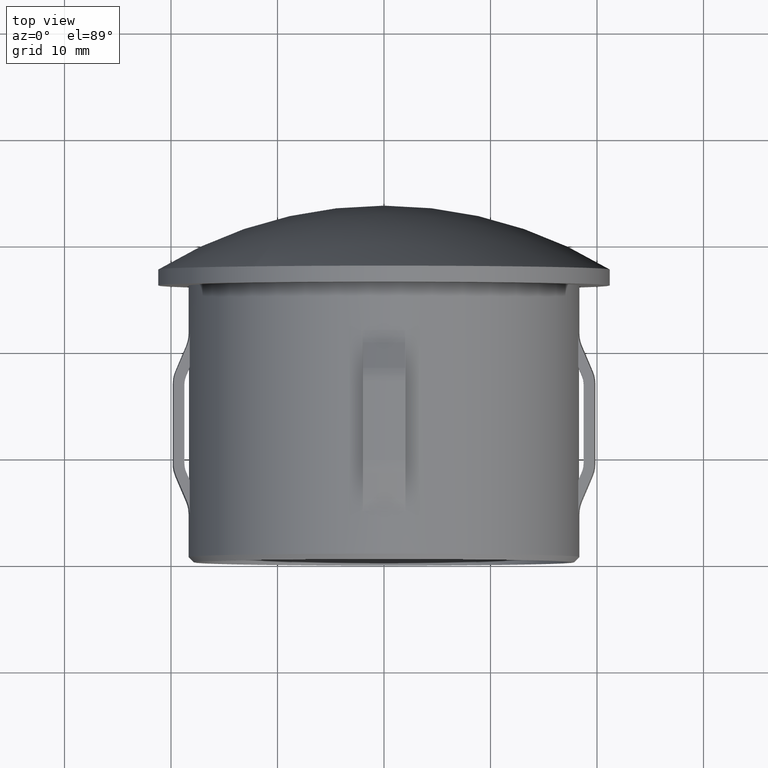
[diagram: clean part render]
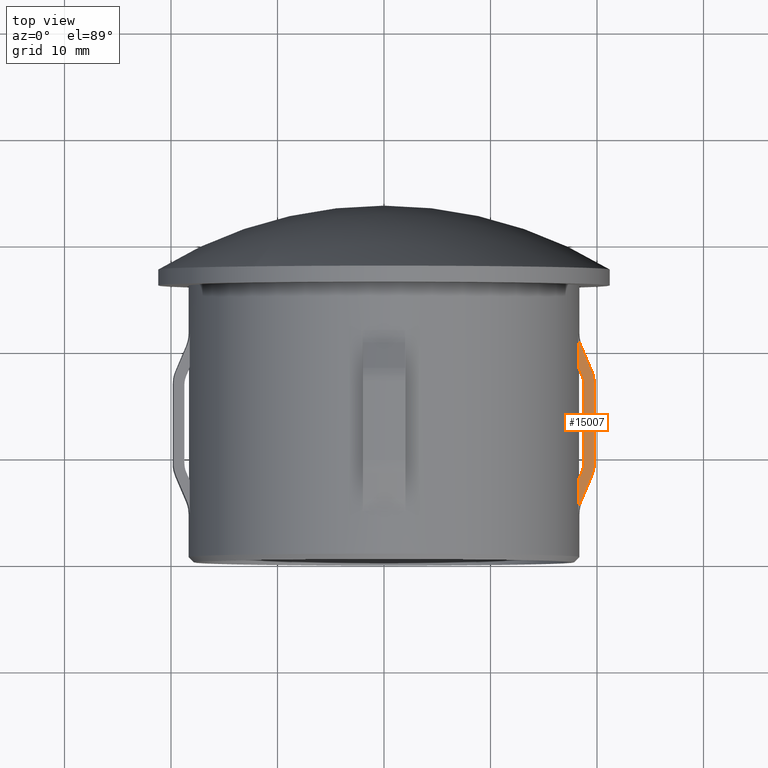
[diagram: same view with one face highlighted and labeled with its STEP entity id]
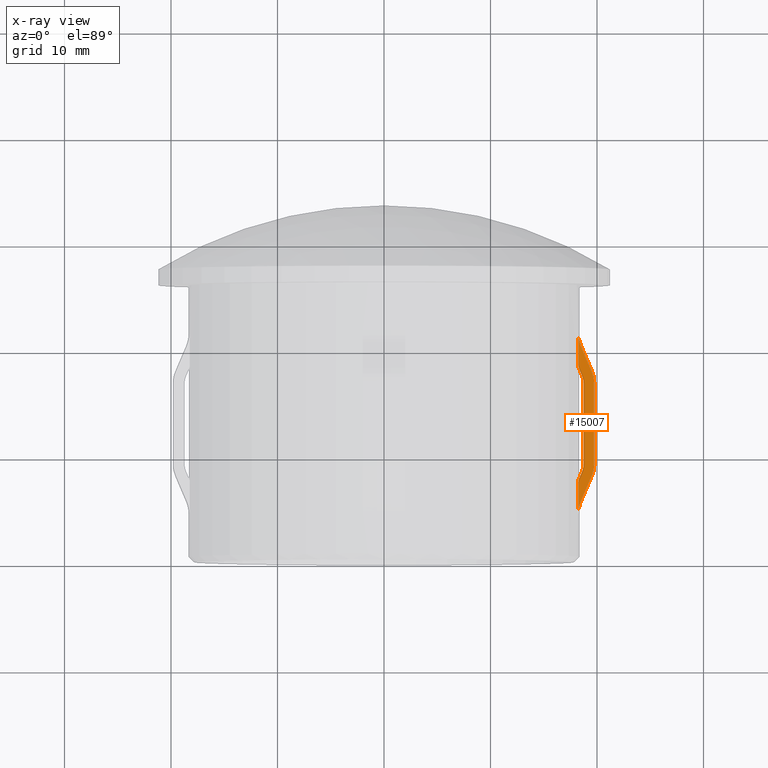
[diagram: x-ray of the same camera — body ghosted, the highlighted face saturated]
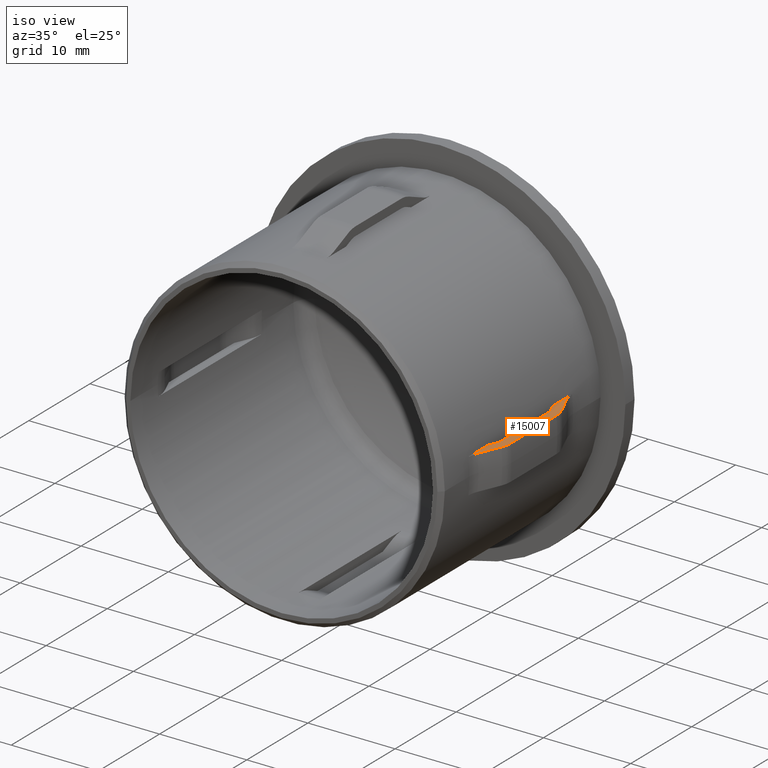
[diagram: same view with one face highlighted and labeled with its STEP entity id]
A machine part, top view. The second image highlights one B-rep face of the part: STEP entity #15007.
The next image is the same camera in x-ray: the body ghosted, the highlighted face saturated — about 0% of this face is hidden behind the body in this view.
A second angle (iso view) of the same face is appended — the face is thin or edge-on in the first view.
In plain terms, the highlighted planar face has unit normal (0, 0, -1).
Its self-contained STEP definition (entity closure, byte-faithful):
#130 = CARTESIAN_POINT ( 'NONE',  ( 18.74359890736032597, 32.00000000000002132, 2.000000000000002220 ) ) ;
#354 = CARTESIAN_POINT ( 'NONE',  ( 18.63570159540588023, 8.590117945594423432, 2.000000000000002220 ) ) ;
#481 = CARTESIAN_POINT ( 'NONE',  ( 18.24068255301866515, 21.49999999999997868, 2.000000000000002220 ) ) ;
#601 = CARTESIAN_POINT ( 'NONE',  ( 19.74898731580938005, 16.75000000000000000, 2.000000000000002665 ) ) ;
#607 = CARTESIAN_POINT ( 'NONE',  ( 18.48137167821510474, 20.32595117004550644, 2.000000000000002220 ) ) ;
#821 = CARTESIAN_POINT ( 'NONE',  ( 18.56424510787411108, 5.867794821283131235, 2.000000000000002220 ) ) ;
#834 = CARTESIAN_POINT ( 'NONE',  ( 18.46901772373891504, 8.200418305755805548, 2.000000000000002220 ) ) ;
#939 = CARTESIAN_POINT ( 'NONE',  ( 18.74359890736035439, 16.75000000000000000, 2.000000000000002220 ) ) ;
#1209 = VERTEX_POINT ( 'NONE', #3117 ) ;
#1255 = ORIENTED_EDGE ( 'NONE', *, *, #14362, .T. ) ;
#1492 = VERTEX_POINT ( 'NONE', #3971 ) ;
#1637 = CARTESIAN_POINT ( 'NONE',  ( 18.54092191755094632, 17.63147281753521156, 2.000000000000002220 ) ) ;
#1667 = CARTESIAN_POINT ( 'NONE',  ( 18.24068255301867225, 21.29764224660665661, 2.000000000000002220 ) ) ;
#1729 = CARTESIAN_POINT ( 'NONE',  ( 18.24068255301867580, 7.666666666666585250, 2.000000000000002220 ) ) ;
#1750 = VERTEX_POINT ( 'NONE', #10995 ) ;
#1844 = CARTESIAN_POINT ( 'NONE',  ( 19.06907008838640749, 18.95183544605704640, 2.000000000000002665 ) ) ;
#1915 = AXIS2_PLACEMENT_3D ( 'NONE', #13315, #8543, #7314 ) ;
#1941 = B_SPLINE_CURVE_WITH_KNOTS ( 'NONE', 3,
 ( #4980, #8614, #13393, #13438, #354, #8725 ),
 .UNSPECIFIED., .F., .F.,
 ( 4, 2, 4 ),
 ( 0.01188164108396581528, 0.01228023246994232667, 0.01267882385591883806 ),
 .UNSPECIFIED. ) ;
#1998 = CARTESIAN_POINT ( 'NONE',  ( 19.64742017109715988, 17.54765186595336601, 2.000000000000002220 ) ) ;
#1999 = EDGE_CURVE ( 'NONE', #1209, #2236, #15545, .T. ) ;
#2011 = DIRECTION ( 'NONE',  ( 6.320148377769856353E-16, -1.000000000000000000, 0.000000000000000000 ) ) ;
#2059 = CARTESIAN_POINT ( 'NONE',  ( 18.52280907483747541, 5.770921533975775120, 2.000000000000002220 ) ) ;
#2233 = ORIENTED_EDGE ( 'NONE', *, *, #9195, .T. ) ;
#2236 = VERTEX_POINT ( 'NONE', #8031 ) ;
#2506 = EDGE_CURVE ( 'NONE', #2542, #13203, #10646, .T. ) ;
#2542 = VERTEX_POINT ( 'NONE', #2792 ) ;
#2792 = CARTESIAN_POINT ( 'NONE',  ( 19.50847465759435195, 17.92404882995449711, 2.000000000000002665 ) ) ;
#3066 = CARTESIAN_POINT ( 'NONE',  ( 19.36282554071148709, 18.26473749683778536, 2.000000000000002665 ) ) ;
#3117 = CARTESIAN_POINT ( 'NONE',  ( 19.74898731580938005, 16.75000000000000000, 2.000000000000002665 ) ) ;
#3166 = CARTESIAN_POINT ( 'NONE',  ( 19.20760720947874489, 7.372162904321272414, 2.000000000000002665 ) ) ;
#3276 = CARTESIAN_POINT ( 'NONE',  ( 18.48137167821510829, 5.674048829954492668, 2.000000000000002220 ) ) ;
#3573 = LINE ( 'NONE', #130, #4841 ) ;
#3576 = CARTESIAN_POINT ( 'NONE',  ( 18.24068255301866870, 18.33333333333338189, 2.000000000000002220 ) ) ;
#3885 = CARTESIAN_POINT ( 'NONE',  ( 19.64853172576011175, 8.456395648387115216, 2.000000000000002665 ) ) ;
#3889 = DIRECTION ( 'NONE',  ( 1.421951005676655281E-15, -1.000000000000000000, -0.000000000000000000 ) ) ;
#3967 = VERTEX_POINT ( 'NONE', #10603 ) ;
#3971 = CARTESIAN_POINT ( 'NONE',  ( 18.58316975146617267, 8.467300780030306839, 2.000000000000002220 ) ) ;
#4175 = CARTESIAN_POINT ( 'NONE',  ( 19.45992655757157408, 18.03761240532044141, 2.000000000000002665 ) ) ;
#4185 = CARTESIAN_POINT ( 'NONE',  ( 18.35485551846467800, 7.933540184405591056, 2.000000000000002220 ) ) ;
#4285 = CARTESIAN_POINT ( 'NONE',  ( 18.24068255301865094, 51.10085858040564233, 2.000000000000002220 ) ) ;
#4345 = VERTEX_POINT ( 'NONE', #14851 ) ;
#4367 = ORIENTED_EDGE ( 'NONE', *, *, #14749, .T. ) ;
#4390 = CARTESIAN_POINT ( 'NONE',  ( 19.72817700442071853, 17.15493269750313488, 2.000000000000002665 ) ) ;
#4585 = EDGE_CURVE ( 'NONE', #9371, #9284, #14427, .T. ) ;
#4653 = CARTESIAN_POINT ( 'NONE',  ( 19.74898731580935873, 51.10085858040564233, 2.000000000000002665 ) ) ;
#4841 = VECTOR ( 'NONE', #3889, 1000.000000000000000 ) ;
#4887 = EDGE_CURVE ( 'NONE', #1209, #2542, #13467, .T. ) ;
#4980 = CARTESIAN_POINT ( 'NONE',  ( 18.74359890736035794, 9.249999999999998224, 2.000000000000002220 ) ) ;
#5143 = CARTESIAN_POINT ( 'NONE',  ( 18.40196181779531770, 20.51159622817798578, 2.000000000000001776 ) ) ;
#5285 = EDGE_LOOP ( 'NONE', ( #12715, #9790, #13481, #2233, #13830, #14446, #11721, #13922, #11775, #6839, #10389, #1255, #4367, #11043 ) ) ;
#5493 = CARTESIAN_POINT ( 'NONE',  ( 18.24068255301867580, 7.666666666666585250, 2.000000000000002220 ) ) ;
#5796 = CARTESIAN_POINT ( 'NONE',  ( 18.40180171427120115, 5.488029480419332806, 2.000000000000002220 ) ) ;
#6031 = DIRECTION ( 'NONE',  ( 6.320148377769856353E-16, -1.000000000000000000, 0.000000000000000000 ) ) ;
#6150 = PLANE ( 'NONE',  #1915 ) ;
#6162 = CARTESIAN_POINT ( 'NONE',  ( 19.74898731580938716, 9.048154354290872448, 2.000000000000002665 ) ) ;
#6369 = CARTESIAN_POINT ( 'NONE',  ( 18.45642203740845844, 17.82901821092405825, 2.000000000000002220 ) ) ;
#6405 = CARTESIAN_POINT ( 'NONE',  ( 18.48137167821510474, 20.32595117004550644, 2.000000000000002220 ) ) ;
#6502 = B_SPLINE_CURVE_WITH_KNOTS ( 'NONE', 3,
 ( #7876, #11502, #6820, #9243, #7980, #939 ),
 .UNSPECIFIED., .F., .F.,
 ( 4, 2, 4 ),
 ( 0.01185186478693510750, 0.01225056385146110725, 0.01264926291598710700 ),
 .UNSPECIFIED. ) ;
#6587 = CARTESIAN_POINT ( 'NONE',  ( 18.77525510737145353, 19.63890794894560088, 2.000000000000002220 ) ) ;
#6637 = B_SPLINE_CURVE_WITH_KNOTS ( 'NONE', 3,
 ( #9500, #13374, #3885, #7538, #6162, #12180 ),
 .UNSPECIFIED., .F., .F.,
 ( 4, 2, 4 ),
 ( 0.01853358041015703769, 0.01913350073999936507, 0.01973342106984168898 ),
 .UNSPECIFIED. ) ;
#6820 = CARTESIAN_POINT ( 'NONE',  ( 18.67595762585148123, 17.28152126477999673, 2.000000000000002665 ) ) ;
#6839 = ORIENTED_EDGE ( 'NONE', *, *, #4585, .T. ) ;
#7053 = VERTEX_POINT ( 'NONE', #1729 ) ;
#7215 = CARTESIAN_POINT ( 'NONE',  ( 18.26142087374112677, 4.904005217764209057, 2.000000000000002665 ) ) ;
#7314 = DIRECTION ( 'NONE',  ( -1.000000000000000000, 0.000000000000000000, -1.466047142671333982E-16 ) ) ;
#7529 = CARTESIAN_POINT ( 'NONE',  ( 18.24068255301866870, 18.33333333333338189, 2.000000000000002220 ) ) ;
#7538 = CARTESIAN_POINT ( 'NONE',  ( 19.72871889727140626, 8.849088672912420961, 2.000000000000002220 ) ) ;
#7876 = CARTESIAN_POINT ( 'NONE',  ( 18.58316975146610162, 17.53269921996966474, 2.000000000000002220 ) ) ;
#7980 = CARTESIAN_POINT ( 'NONE',  ( 18.74359890736036149, 16.88383845180241138, 2.000000000000002220 ) ) ;
#7982 = CARTESIAN_POINT ( 'NONE',  ( 18.24068255301865094, 51.10085858040564233, 2.000000000000002220 ) ) ;
#8031 = CARTESIAN_POINT ( 'NONE',  ( 19.74898731580938716, 9.249999999999987566, 2.000000000000002665 ) ) ;
#8082 = EDGE_CURVE ( 'NONE', #7053, #12060, #11527, .T. ) ;
#8338 = VECTOR ( 'NONE', #2011, 1000.000000000000000 ) ;
#8340 = CARTESIAN_POINT ( 'NONE',  ( 18.24068255301867580, 4.499999999999997335, 2.000000000000002220 ) ) ;
#8424 = CARTESIAN_POINT ( 'NONE',  ( 18.74359890736035794, 9.249999999999998224, 2.000000000000002220 ) ) ;
#8487 = EDGE_CURVE ( 'NONE', #9284, #1750, #10261, .T. ) ;
#8543 = DIRECTION ( 'NONE',  ( 1.466047142671333982E-16, 9.265635470488363048E-32, -1.000000000000000000 ) ) ;
#8591 = CARTESIAN_POINT ( 'NONE',  ( 18.38451304774628525, 17.99712503630845717, 2.000000000000002220 ) ) ;
#8614 = CARTESIAN_POINT ( 'NONE',  ( 18.74359890736034728, 9.117034382552958505, 2.000000000000001776 ) ) ;
#8725 = CARTESIAN_POINT ( 'NONE',  ( 18.58316975146617267, 8.467300780030306839, 2.000000000000002220 ) ) ;
#9113 = CARTESIAN_POINT ( 'NONE',  ( 19.41137686399203233, 18.15117529945931452, 2.000000000000002665 ) ) ;
#9195 = EDGE_CURVE ( 'NONE', #3967, #12644, #9274, .T. ) ;
#9243 = CARTESIAN_POINT ( 'NONE',  ( 18.72994375718856119, 17.01857741280067060, 2.000000000000002220 ) ) ;
#9274 = B_SPLINE_CURVE_WITH_KNOTS ( 'NONE', 3,
 ( #3276, #2059, #821, #12952, #11539, #3166, #10434 ),
 .UNSPECIFIED., .F., .F.,
 ( 4, 3, 4 ),
 ( 0.005117759078300771619, 0.005433848308048339244, 0.007730052150623842669 ),
 .UNSPECIFIED. ) ;
#9284 = VERTEX_POINT ( 'NONE', #3576 ) ;
#9371 = VERTEX_POINT ( 'NONE', #9637 ) ;
#9380 = VERTEX_POINT ( 'NONE', #8424 ) ;
#9498 = EDGE_CURVE ( 'NONE', #13203, #9371, #12489, .T. ) ;
#9500 = CARTESIAN_POINT ( 'NONE',  ( 19.50847465759434485, 8.075951170045506444, 2.000000000000002665 ) ) ;
#9637 = CARTESIAN_POINT ( 'NONE',  ( 18.24068255301866515, 21.49999999999997868, 2.000000000000002220 ) ) ;
#9790 = ORIENTED_EDGE ( 'NONE', *, *, #8082, .T. ) ;
#9850 = EDGE_CURVE ( 'NONE', #9380, #1492, #1941, .T. ) ;
#9879 = CARTESIAN_POINT ( 'NONE',  ( 18.34148331105515339, 20.70555644726653810, 2.000000000000002665 ) ) ;
#10081 = EDGE_CURVE ( 'NONE', #12644, #2236, #6637, .T. ) ;
#10261 = B_SPLINE_CURVE_WITH_KNOTS ( 'NONE', 3,
 ( #7529, #11065, #8591, #6369, #11213, #1637, #13520 ),
 .UNSPECIFIED., .F., .F.,
 ( 4, 3, 4 ),
 ( 0.003980612247854556016, 0.004529135042152909740, 0.004851423612738313754 ),
 .UNSPECIFIED. ) ;
#10389 = ORIENTED_EDGE ( 'NONE', *, *, #8487, .T. ) ;
#10432 = CARTESIAN_POINT ( 'NONE',  ( 19.74898731580938716, 16.95174087095299598, 2.000000000000002665 ) ) ;
#10434 = CARTESIAN_POINT ( 'NONE',  ( 19.50847465759434485, 8.075951170045506444, 2.000000000000002665 ) ) ;
#10557 = B_SPLINE_CURVE_WITH_KNOTS ( 'NONE', 3,
 ( #15149, #834, #4185, #5493 ),
 .UNSPECIFIED., .F., .F.,
 ( 4, 4 ),
 ( 0.003654759251242263585, 0.004525570624175986531 ),
 .UNSPECIFIED. ) ;
#10603 = CARTESIAN_POINT ( 'NONE',  ( 18.48137167821510829, 5.674048829954492668, 2.000000000000002220 ) ) ;
#10646 = B_SPLINE_CURVE_WITH_KNOTS ( 'NONE', 3,
 ( #13728, #4175, #9113, #3066, #1844, #6587, #607 ),
 .UNSPECIFIED., .F., .F.,
 ( 4, 3, 4 ),
 ( 0.005063331775488879617, 0.005433848210711781160, 0.007675624897260858309 ),
 .UNSPECIFIED. ) ;
#10749 = CARTESIAN_POINT ( 'NONE',  ( 18.24068255301867936, 4.701961065905600812, 2.000000000000001776 ) ) ;
#10995 = CARTESIAN_POINT ( 'NONE',  ( 18.58316975146610162, 17.53269921996966474, 2.000000000000002220 ) ) ;
#11043 = ORIENTED_EDGE ( 'NONE', *, *, #9850, .T. ) ;
#11065 = CARTESIAN_POINT ( 'NONE',  ( 18.31259993548926346, 18.16523009828528856, 2.000000000000002220 ) ) ;
#11213 = CARTESIAN_POINT ( 'NONE',  ( 18.49867268914840324, 17.73024581865722737, 2.000000000000002220 ) ) ;
#11502 = CARTESIAN_POINT ( 'NONE',  ( 18.63544483199900270, 17.41048235607948413, 2.000000000000001776 ) ) ;
#11527 = LINE ( 'NONE', #4285, #8338 ) ;
#11539 = CARTESIAN_POINT ( 'NONE',  ( 18.90667869736104478, 6.668400739142606781, 2.000000000000002220 ) ) ;
#11721 = ORIENTED_EDGE ( 'NONE', *, *, #4887, .T. ) ;
#11775 = ORIENTED_EDGE ( 'NONE', *, *, #9498, .T. ) ;
#12060 = VERTEX_POINT ( 'NONE', #13498 ) ;
#12066 = DIRECTION ( 'NONE',  ( 6.320148377769856353E-16, -1.000000000000000000, 0.000000000000000000 ) ) ;
#12180 = CARTESIAN_POINT ( 'NONE',  ( 19.74898731580938716, 9.249999999999987566, 2.000000000000002665 ) ) ;
#12376 = VECTOR ( 'NONE', #12066, 1000.000000000000000 ) ;
#12489 = B_SPLINE_CURVE_WITH_KNOTS ( 'NONE', 3,
 ( #6405, #5143, #9879, #13507, #1667, #481 ),
 .UNSPECIFIED., .F., .F.,
 ( 4, 2, 4 ),
 ( 0.01864115322806293024, 0.01924089754622532872, 0.01984064186438772373 ),
 .UNSPECIFIED. ) ;
#12549 = CARTESIAN_POINT ( 'NONE',  ( 19.50847465759434485, 8.075951170045506444, 2.000000000000002665 ) ) ;
#12644 = VERTEX_POINT ( 'NONE', #12549 ) ;
#12715 = ORIENTED_EDGE ( 'NONE', *, *, #14802, .T. ) ;
#12763 = EDGE_CURVE ( 'NONE', #12060, #3967, #13250, .T. ) ;
#12889 = CARTESIAN_POINT ( 'NONE',  ( 18.48137167821510474, 20.32595117004550644, 2.000000000000002220 ) ) ;
#12898 = CARTESIAN_POINT ( 'NONE',  ( 19.50847465759435195, 17.92404882995449711, 2.000000000000002665 ) ) ;
#12952 = CARTESIAN_POINT ( 'NONE',  ( 18.60567980440307068, 5.964668680227572573, 2.000000000000002220 ) ) ;
#13011 = CARTESIAN_POINT ( 'NONE',  ( 18.34183762337048051, 5.295725348027624513, 2.000000000000002220 ) ) ;
#13203 = VERTEX_POINT ( 'NONE', #12889 ) ;
#13250 = B_SPLINE_CURVE_WITH_KNOTS ( 'NONE', 3,
 ( #8340, #10749, #7215, #13011, #5796, #14205 ),
 .UNSPECIFIED., .F., .F.,
 ( 4, 2, 4 ),
 ( 0.01864550276516615049, 0.01924523204796789455, 0.01984496133076963514 ),
 .UNSPECIFIED. ) ;
#13315 = CARTESIAN_POINT ( 'NONE',  ( -3.258971027449401430E-14, 51.10085858040562812, 1.999999999999999556 ) ) ;
#13374 = CARTESIAN_POINT ( 'NONE',  ( 19.58776479706041940, 8.261426435293925508, 2.000000000000002665 ) ) ;
#13393 = CARTESIAN_POINT ( 'NONE',  ( 18.73006058103210592, 8.982325460465498068, 2.000000000000002665 ) ) ;
#13438 = CARTESIAN_POINT ( 'NONE',  ( 18.67623955027547922, 8.719520459361582709, 2.000000000000002220 ) ) ;
#13467 = B_SPLINE_CURVE_WITH_KNOTS ( 'NONE', 3,
 ( #601, #10432, #4390, #1998, #15250, #12898 ),
 .UNSPECIFIED., .F., .F.,
 ( 4, 2, 4 ),
 ( 0.01851716384993863304, 0.01911706737207309950, 0.01971697089420756596 ),
 .UNSPECIFIED. ) ;
#13481 = ORIENTED_EDGE ( 'NONE', *, *, #12763, .T. ) ;
#13498 = CARTESIAN_POINT ( 'NONE',  ( 18.24068255301867580, 4.499999999999997335, 2.000000000000002220 ) ) ;
#13507 = CARTESIAN_POINT ( 'NONE',  ( 18.26123782898628534, 21.09733350163308785, 2.000000000000002220 ) ) ;
#13520 = CARTESIAN_POINT ( 'NONE',  ( 18.58316975146610162, 17.53269921996966474, 2.000000000000002220 ) ) ;
#13728 = CARTESIAN_POINT ( 'NONE',  ( 19.50847465759435195, 17.92404882995449711, 2.000000000000002665 ) ) ;
#13830 = ORIENTED_EDGE ( 'NONE', *, *, #10081, .T. ) ;
#13922 = ORIENTED_EDGE ( 'NONE', *, *, #2506, .T. ) ;
#14205 = CARTESIAN_POINT ( 'NONE',  ( 18.48137167821510829, 5.674048829954492668, 2.000000000000002220 ) ) ;
#14362 = EDGE_CURVE ( 'NONE', #1750, #4345, #6502, .T. ) ;
#14427 = LINE ( 'NONE', #7982, #15551 ) ;
#14446 = ORIENTED_EDGE ( 'NONE', *, *, #1999, .F. ) ;
#14749 = EDGE_CURVE ( 'NONE', #4345, #9380, #3573, .T. ) ;
#14802 = EDGE_CURVE ( 'NONE', #1492, #7053, #10557, .T. ) ;
#14851 = CARTESIAN_POINT ( 'NONE',  ( 18.74359890736035439, 16.75000000000000000, 2.000000000000002220 ) ) ;
#15007 = ADVANCED_FACE ( 'NONE', ( #15162 ), #6150, .F. ) ;
#15149 = CARTESIAN_POINT ( 'NONE',  ( 18.58316975146617267, 8.467300780030306839, 2.000000000000002220 ) ) ;
#15162 = FACE_OUTER_BOUND ( 'NONE', #5285, .T. ) ;
#15250 = CARTESIAN_POINT ( 'NONE',  ( 19.58775311394406060, 17.73860089381813054, 2.000000000000002665 ) ) ;
#15545 = LINE ( 'NONE', #4653, #12376 ) ;
#15551 = VECTOR ( 'NONE', #6031, 1000.000000000000000 ) ;